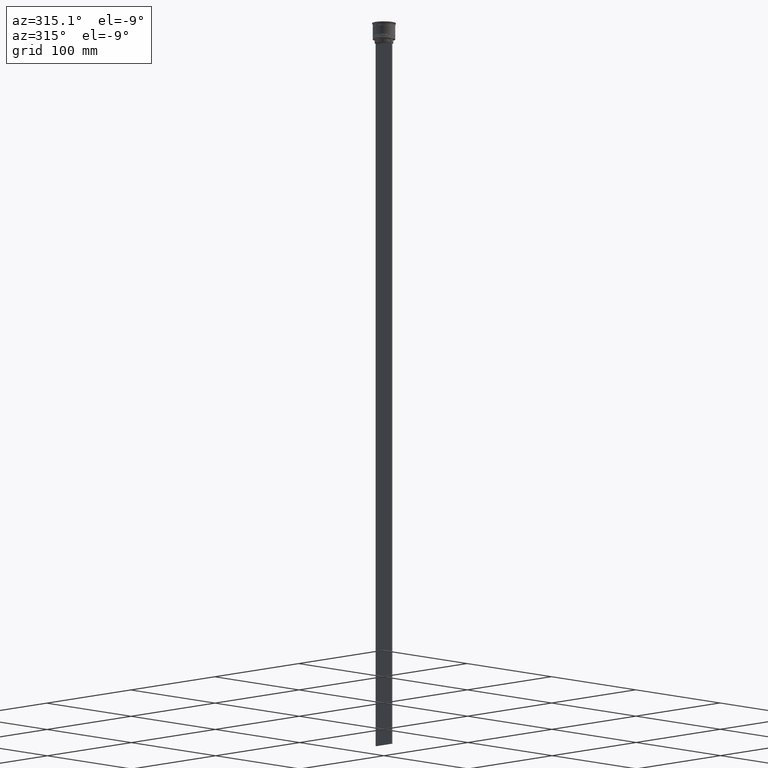
[diagram: clean part render]
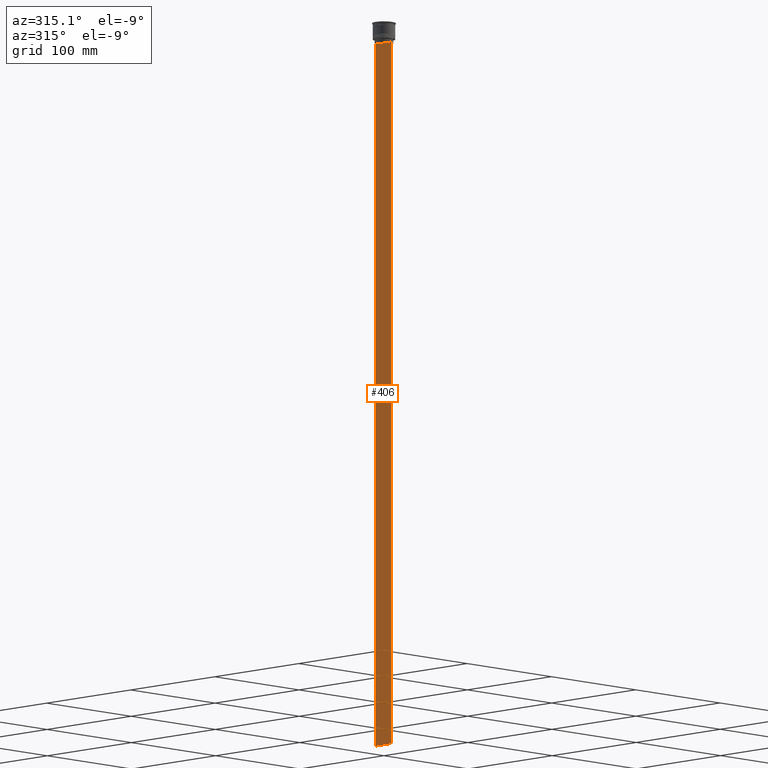
[diagram: same view with one face highlighted and labeled with its STEP entity id]
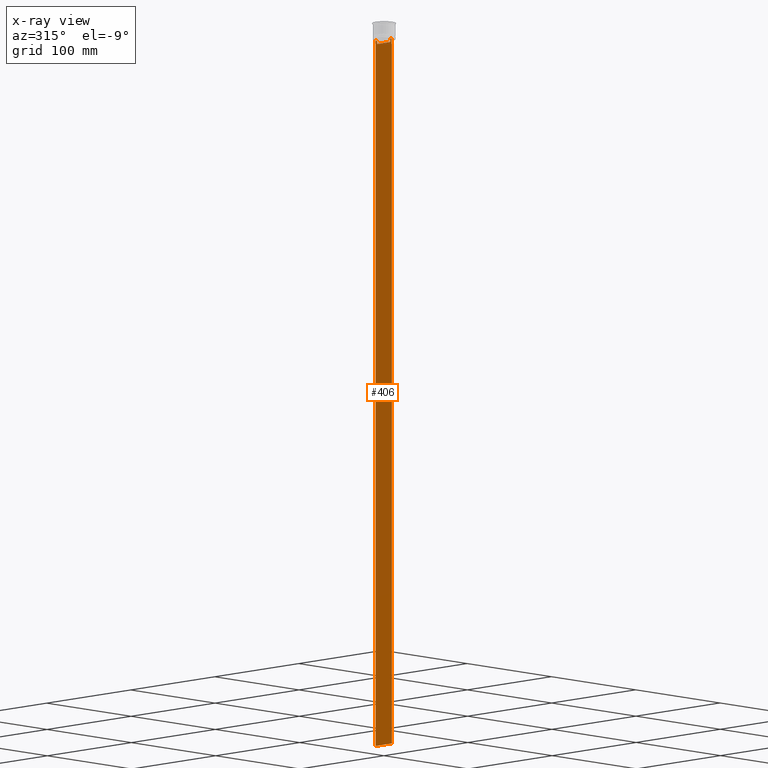
[diagram: x-ray of the same camera — body ghosted, the highlighted face saturated]
A machine part, auxiliary view. The second image highlights one B-rep face of the part: STEP entity #406.
The next image is the same camera in x-ray: the body ghosted, the highlighted face saturated — about 0% of this face is hidden behind the body in this view.
In plain terms, the highlighted planar face has unit normal (-1, 0, 0).
Its self-contained STEP definition (entity closure, byte-faithful):
#1 = ORIENTED_EDGE ( 'NONE', *, *, #1464, .F. ) ;
#9 = CARTESIAN_POINT ( 'NONE',  ( -0.5000000000000000000, -8.385105843100605583, -14.00000000000000178 ) ) ;
#32 = EDGE_CURVE ( 'NONE', #1476, #91, #2353, .T. ) ;
#91 = VERTEX_POINT ( 'NONE', #1878 ) ;
#107 = CARTESIAN_POINT ( 'NONE',  ( -0.5000000000000000000, 9.386692708297204035, -14.00000000000000178 ) ) ;
#148 = CARTESIAN_POINT ( 'NONE',  ( -0.5000000000000000000, -8.385105843100605583, -14.00000000000000178 ) ) ;
#159 = CARTESIAN_POINT ( 'NONE',  ( -0.5000000000000000000, -8.218133703942523738, -14.16667607853445787 ) ) ;
#227 = CARTESIAN_POINT ( 'NONE',  ( -0.5000000000000000000, 9.499999999999994671, -14.00000000000000178 ) ) ;
#266 = DIRECTION ( 'NONE',  ( 0.000000000000000000, -1.000000000000000000, 0.000000000000000000 ) ) ;
#273 = DIRECTION ( 'NONE',  ( 0.000000000000000000, -1.000000000000000000, 0.000000000000000000 ) ) ;
#279 = VERTEX_POINT ( 'NONE', #227 ) ;
#282 = ORIENTED_EDGE ( 'NONE', *, *, #1741, .F. ) ;
#300 = VECTOR ( 'NONE', #840, 1000.000000000000000 ) ;
#317 = CARTESIAN_POINT ( 'NONE',  ( -0.5000000000000000000, -9.500000000000001776, -14.00000000000000178 ) ) ;
#322 = ORIENTED_EDGE ( 'NONE', *, *, #796, .F. ) ;
#328 = ORIENTED_EDGE ( 'NONE', *, *, #1280, .F. ) ;
#343 = DIRECTION ( 'NONE',  ( 0.000000000000000000, -1.000000000000000000, 0.000000000000000000 ) ) ;
#359 = CARTESIAN_POINT ( 'NONE',  ( -0.5000000000000000000, 8.218133718559618828, -14.16667606394327983 ) ) ;
#362 = ORIENTED_EDGE ( 'NONE', *, *, #1380, .F. ) ;
#369 = CARTESIAN_POINT ( 'NONE',  ( -0.5000000000000000000, 8.051152811434374001, -14.33334332653219079 ) ) ;
#399 = CARTESIAN_POINT ( 'NONE',  ( -0.5000000000000000000, 8.385105843100605583, -14.00000000000000178 ) ) ;
#406 = ADVANCED_FACE ( 'NONE', ( #1190 ), #2432, .T. ) ;
#460 = ORIENTED_EDGE ( 'NONE', *, *, #1693, .T. ) ;
#513 = CARTESIAN_POINT ( 'NONE',  ( -0.5000000000000000000, -9.500000000000001776, -14.00000000000000178 ) ) ;
#554 = DIRECTION ( 'NONE',  ( 0.000000000000000000, -1.000000000000000000, 0.000000000000000000 ) ) ;
#556 = CARTESIAN_POINT ( 'NONE',  ( -0.5000000000000000000, -9.500000000000001776, -614.0000000000000000 ) ) ;
#585 = CARTESIAN_POINT ( 'NONE',  ( -0.5000000000000000000, -9.500000000000001776, 5.026297590440445440 ) ) ;
#594 = AXIS2_PLACEMENT_3D ( 'NONE', #2209, #1435, #1206 ) ;
#653 = CARTESIAN_POINT ( 'NONE',  ( -0.5000000000000000000, -9.500000000000001776, -14.00000000000000178 ) ) ;
#708 = ORIENTED_EDGE ( 'NONE', *, *, #32, .F. ) ;
#741 = CARTESIAN_POINT ( 'NONE',  ( -0.5000000000000000000, -9.500000000000001776, -14.00000000000000178 ) ) ;
#746 = CARTESIAN_POINT ( 'NONE',  ( -0.5000000000000000000, 9.499999999999998224, 5.026297590440445440 ) ) ;
#758 = CARTESIAN_POINT ( 'NONE',  ( -0.5000000000000000000, 7.899999999999994138, -17.00000000000000000 ) ) ;
#795 = CARTESIAN_POINT ( 'NONE',  ( -0.5000000000000000000, 7.884161337770803080, -17.00000000000000000 ) ) ;
#796 = EDGE_CURVE ( 'NONE', #909, #1476, #1758, .T. ) ;
#809 = EDGE_CURVE ( 'NONE', #2650, #909, #976, .T. ) ;
#840 = DIRECTION ( 'NONE',  ( 0.000000000000000000, 0.000000000000000000, -1.000000000000000000 ) ) ;
#870 = LINE ( 'NONE', #1699, #300 ) ;
#909 = VERTEX_POINT ( 'NONE', #2611 ) ;
#971 = VECTOR ( 'NONE', #273, 1000.000000000000000 ) ;
#976 = LINE ( 'NONE', #2436, #2541 ) ;
#979 = CARTESIAN_POINT ( 'NONE',  ( -0.5000000000000000000, -9.500000000000001776, -614.0000000000000000 ) ) ;
#1008 = CARTESIAN_POINT ( 'NONE',  ( -0.5000000000000000000, 8.385105843100605583, -14.00000000000000178 ) ) ;
#1126 = EDGE_LOOP ( 'NONE', ( #1731, #2558, #2470, #460, #282, #328, #362, #708, #322, #1366, #2057, #1 ) ) ;
#1143 = DIRECTION ( 'NONE',  ( 0.000000000000000000, -1.000000000000000000, 0.000000000000000000 ) ) ;
#1157 = DIRECTION ( 'NONE',  ( -0.000000000000000000, -0.000000000000000000, 1.000000000000000000 ) ) ;
#1190 = FACE_OUTER_BOUND ( 'NONE', #1126, .T. ) ;
#1206 = DIRECTION ( 'NONE',  ( 0.000000000000000000, 0.000000000000000000, 1.000000000000000000 ) ) ;
#1211 = VECTOR ( 'NONE', #2473, 1000.000000000000000 ) ;
#1215 = DIRECTION ( 'NONE',  ( 0.000000000000000000, 0.000000000000000000, -1.000000000000000000 ) ) ;
#1280 = EDGE_CURVE ( 'NONE', #2361, #1633, #2443, .T. ) ;
#1366 = ORIENTED_EDGE ( 'NONE', *, *, #809, .F. ) ;
#1380 = EDGE_CURVE ( 'NONE', #91, #2361, #2059, .T. ) ;
#1391 = LINE ( 'NONE', #746, #2240 ) ;
#1435 = DIRECTION ( 'NONE',  ( -1.000000000000000000, 0.000000000000000000, 0.000000000000000000 ) ) ;
#1464 = EDGE_CURVE ( 'NONE', #2326, #2605, #870, .T. ) ;
#1476 = VERTEX_POINT ( 'NONE', #9 ) ;
#1607 = VECTOR ( 'NONE', #554, 1000.000000000000000 ) ;
#1617 = LINE ( 'NONE', #758, #1607 ) ;
#1633 = VERTEX_POINT ( 'NONE', #979 ) ;
#1649 = VECTOR ( 'NONE', #1143, 1000.000000000000000 ) ;
#1682 = CARTESIAN_POINT ( 'NONE',  ( -0.5000000000000000000, 7.884161337770803080, -14.50000000000000000 ) ) ;
#1693 = EDGE_CURVE ( 'NONE', #279, #1933, #1391, .T. ) ;
#1699 = CARTESIAN_POINT ( 'NONE',  ( -0.5000000000000000000, 7.884161337770803080, 0.000000000000000000 ) ) ;
#1731 = ORIENTED_EDGE ( 'NONE', *, *, #2100, .F. ) ;
#1741 = EDGE_CURVE ( 'NONE', #1633, #1933, #2191, .T. ) ;
#1758 = B_SPLINE_CURVE_WITH_KNOTS ( 'NONE', 3,
 ( #2213, #2175, #159, #148 ),
 .UNSPECIFIED., .F., .F.,
 ( 4, 4 ),
 ( 0.03673372442973153046, 0.03744389749832059688 ),
 .UNSPECIFIED. ) ;
#1769 = VERTEX_POINT ( 'NONE', #399 ) ;
#1878 = CARTESIAN_POINT ( 'NONE',  ( -0.5000000000000000000, -9.386692708297204035, -14.00000000000000178 ) ) ;
#1933 = VERTEX_POINT ( 'NONE', #2546 ) ;
#1958 = LINE ( 'NONE', #2540, #971 ) ;
#2036 = EDGE_CURVE ( 'NONE', #2043, #1769, #2140, .T. ) ;
#2043 = VERTEX_POINT ( 'NONE', #107 ) ;
#2057 = ORIENTED_EDGE ( 'NONE', *, *, #2085, .F. ) ;
#2059 = LINE ( 'NONE', #653, #2413 ) ;
#2085 = EDGE_CURVE ( 'NONE', #2605, #2650, #1617, .T. ) ;
#2100 = EDGE_CURVE ( 'NONE', #1769, #2326, #2337, .T. ) ;
#2140 = LINE ( 'NONE', #317, #1649 ) ;
#2175 = CARTESIAN_POINT ( 'NONE',  ( -0.5000000000000000000, -8.051152795888546265, -14.33334334204685057 ) ) ;
#2191 = LINE ( 'NONE', #556, #2417 ) ;
#2209 = CARTESIAN_POINT ( 'NONE',  ( -0.5000000000000000000, -9.500000000000001776, 5.026297590440445440 ) ) ;
#2213 = CARTESIAN_POINT ( 'NONE',  ( -0.5000000000000000000, -7.884161337770803080, -14.50000000000000000 ) ) ;
#2240 = VECTOR ( 'NONE', #1215, 1000.000000000000000 ) ;
#2326 = VERTEX_POINT ( 'NONE', #1682 ) ;
#2337 = B_SPLINE_CURVE_WITH_KNOTS ( 'NONE', 3,
 ( #1008, #359, #369, #2640 ),
 .UNSPECIFIED., .F., .F.,
 ( 4, 4 ),
 ( 0.01426761478740281447, 0.01497538974438914448 ),
 .UNSPECIFIED. ) ;
#2350 = EDGE_CURVE ( 'NONE', #279, #2043, #1958, .T. ) ;
#2353 = LINE ( 'NONE', #741, #2451 ) ;
#2355 = CARTESIAN_POINT ( 'NONE',  ( -0.5000000000000000000, -7.884161337770803080, -17.00000000000000000 ) ) ;
#2361 = VERTEX_POINT ( 'NONE', #513 ) ;
#2413 = VECTOR ( 'NONE', #266, 1000.000000000000000 ) ;
#2417 = VECTOR ( 'NONE', #2426, 1000.000000000000000 ) ;
#2426 = DIRECTION ( 'NONE',  ( 0.000000000000000000, 1.000000000000000000, 0.000000000000000000 ) ) ;
#2432 = PLANE ( 'NONE',  #594 ) ;
#2436 = CARTESIAN_POINT ( 'NONE',  ( -0.5000000000000000000, -7.884161337770803080, 0.000000000000000000 ) ) ;
#2443 = LINE ( 'NONE', #585, #1211 ) ;
#2451 = VECTOR ( 'NONE', #343, 1000.000000000000000 ) ;
#2470 = ORIENTED_EDGE ( 'NONE', *, *, #2350, .F. ) ;
#2473 = DIRECTION ( 'NONE',  ( 0.000000000000000000, 0.000000000000000000, -1.000000000000000000 ) ) ;
#2540 = CARTESIAN_POINT ( 'NONE',  ( -0.5000000000000000000, -9.500000000000001776, -14.00000000000000178 ) ) ;
#2541 = VECTOR ( 'NONE', #1157, 1000.000000000000000 ) ;
#2546 = CARTESIAN_POINT ( 'NONE',  ( -0.5000000000000000000, 9.499999999999998224, -614.0000000000000000 ) ) ;
#2558 = ORIENTED_EDGE ( 'NONE', *, *, #2036, .F. ) ;
#2605 = VERTEX_POINT ( 'NONE', #795 ) ;
#2611 = CARTESIAN_POINT ( 'NONE',  ( -0.5000000000000000000, -7.884161337770803080, -14.50000000000000000 ) ) ;
#2640 = CARTESIAN_POINT ( 'NONE',  ( -0.5000000000000000000, 7.884161337770803080, -14.50000000000000000 ) ) ;
#2650 = VERTEX_POINT ( 'NONE', #2355 ) ;